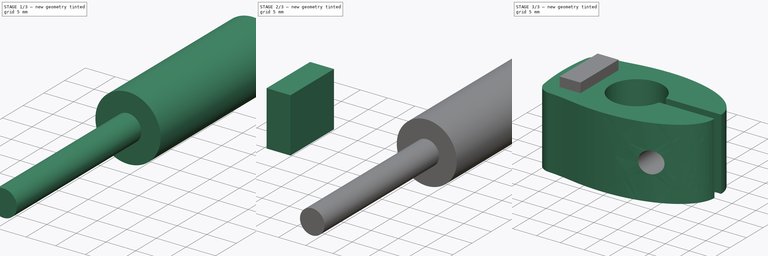
[diagram: build sequence overview — one tinted view per stage of 3, left to right]
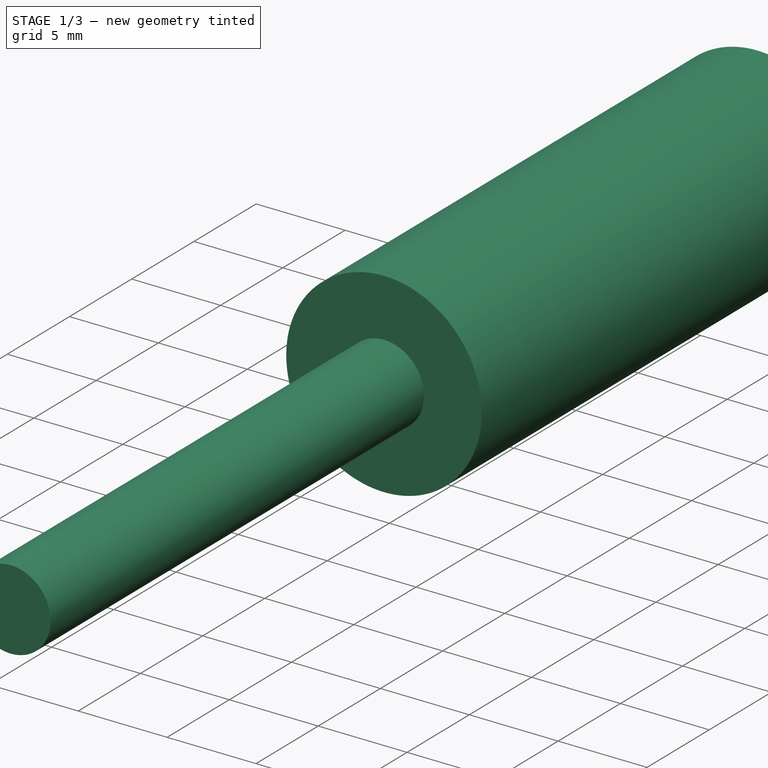
[diagram: stage 1 of 3 — iso view after this stage's code; geometry added in this stage tinted green]
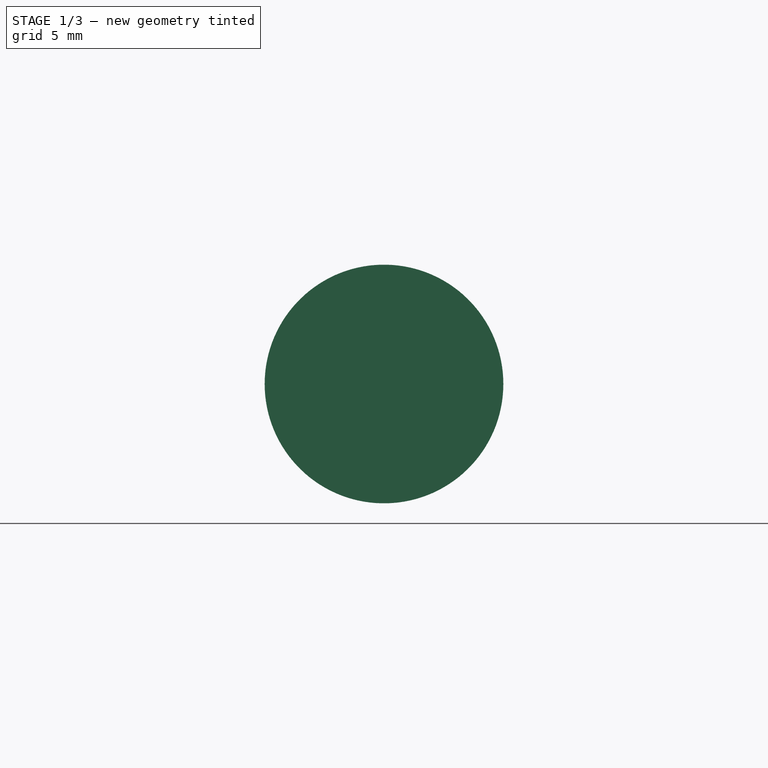
[diagram: stage 1 of 3 — front view after this stage's code; geometry added in this stage tinted green]
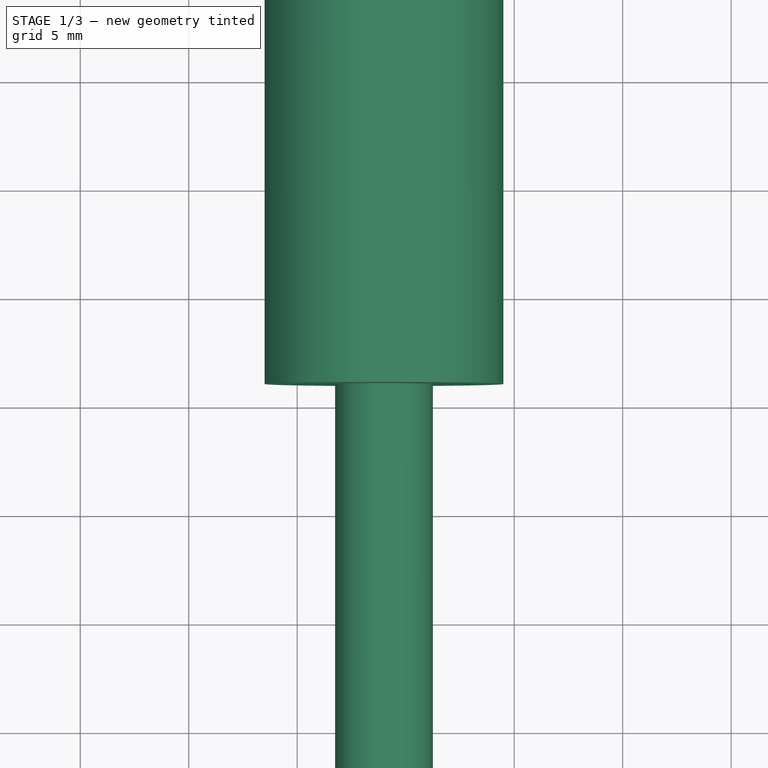
[diagram: stage 1 of 3 — top view after this stage's code; geometry added in this stage tinted green]
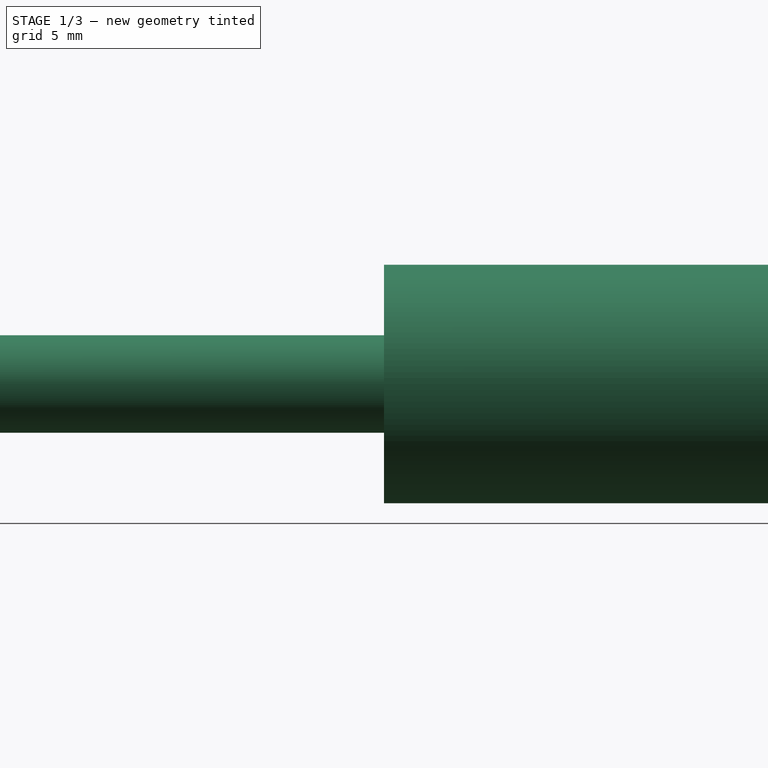
[diagram: stage 1 of 3 — right view after this stage's code; geometry added in this stage tinted green]
FCSTD DOCUMENT  (FreeCAD 0.22R37100 (Git))
Label: 3018_pro_additional
License: All rights reserved
LicenseURL: http://en.wikipedia.org/wiki/All_rights_reserved
objects: Sketcher::SketchObject×4, Part::FeaturePython×3, PartDesign::Body×3, Part::Mirroring×1, PartDesign::SubShapeBinder×1, PartDesign::Pad×1, Part::Extrusion×1, Part::Compound×1, PartDesign::Revolution×1, Part::MultiFuse×1, PartDesign::Boolean×1
note: 20 computed .brp shape members not serialized (recipe doc carries the construction recipe); baked Part::Feature solids carry a one-line shape summary decoded from their .brp

FEATURE [Sketcher::SketchObject] Sketch003
  AttachmentSupport = -> [XZ_Plane002]
  FullyConstrained = true
  MapMode = 5
  Placement = pos=(0,0,0) rot=(1,0,0;1.5708rad)
  sketch-geometry (6):
    g0: LineSegment StartX=0 StartY=30 StartZ=0 EndX=5.5 EndY=30 EndZ=0
    g1: LineSegment StartX=5.5 StartY=30 StartZ=0 EndX=5.5 EndY=0 EndZ=0
    g2: LineSegment StartX=5.5 StartY=0 StartZ=0 EndX=2.25 EndY=0 EndZ=0
    g3: LineSegment StartX=2.25 StartY=0 StartZ=0 EndX=2.25 EndY=-30 EndZ=0
    g4: LineSegment StartX=2.25 StartY=-30 StartZ=0 EndX=0 EndY=-30 EndZ=0
    g5: LineSegment StartX=0 StartY=-30 StartZ=0 EndX=0 EndY=30 EndZ=0
  constraints (18):
    c: PointOnObject(g0,g-2)
    c: Horizontal(g0)
    c: Coincident(g0,g1)
    c: PointOnObject(g1,g-1)
    c: Vertical(g1)
    c: Coincident(g1,g2)
    c: Horizontal(g2)
    c: Coincident(g2,g3)
    c: Vertical(g3)
    c: Coincident(g3,g4)
    c: PointOnObject(g4,g-2)
    c: Horizontal(g4)
    c: Coincident(g4,g5)
    c: Coincident(g5,g0)
    c: DistanceX(g2) = 2.25
    c: DistanceX(g1) = 5.5
    c: DistanceY(g1,g1) = 30
    c: Equal(g3,g1)
FEATURE [PartDesign::Revolution] Revolution
  Angle = 360
  Angle2 = 60
  Axis = (0,2e-16,1)
  Base = (0,0,0)
  Placement = pos=(0,0,0) rot=(1,0,0;1.5708rad)
  Profile = -> Sketch003
  ReferenceAxis = -> Sketch003 [V_Axis]
  Reversed = true
  Suppressed = false
  Type = 0
FEATURE [PartDesign::Body] Body002
  Group = -> [Sketch003,Revolution]
  Origin = -> Origin002
  Tip = -> Revolution
FEATURE [Part::FeaturePython] Placment  # WARN: FeaturePython — macro-defined, semantics opaque (R4)
  AttacherType = Attacher::AttachEngine3D
  ExposePlacement = true
  MarkerShape = 1
  MarkerSize = 5
  NumElements = 1
  Placement = pos=(9,6,7.5) rot=(1,0,0;-1.5708rad)
  Type = lattice2AttachablePlacement.AttachablePlacement
  isLattice = 1
FEATURE [Part::FeaturePython] Populate  label="Populate Placment with Body002"  # WARN: FeaturePython — macro-defined, semantics opaque (R4)
  Copying = 0
  ExposePlacement = false
  MarkerShape = 1
  MarkerSize = 0
  NumElements = 0
  Object = -> Body002
  OutputCompounding = 2
  PlacementsTo = -> Placment
  Referencing = 0
  Type = lattice2PopulateCopies.LatticePopulateCopies
  isLattice = 0
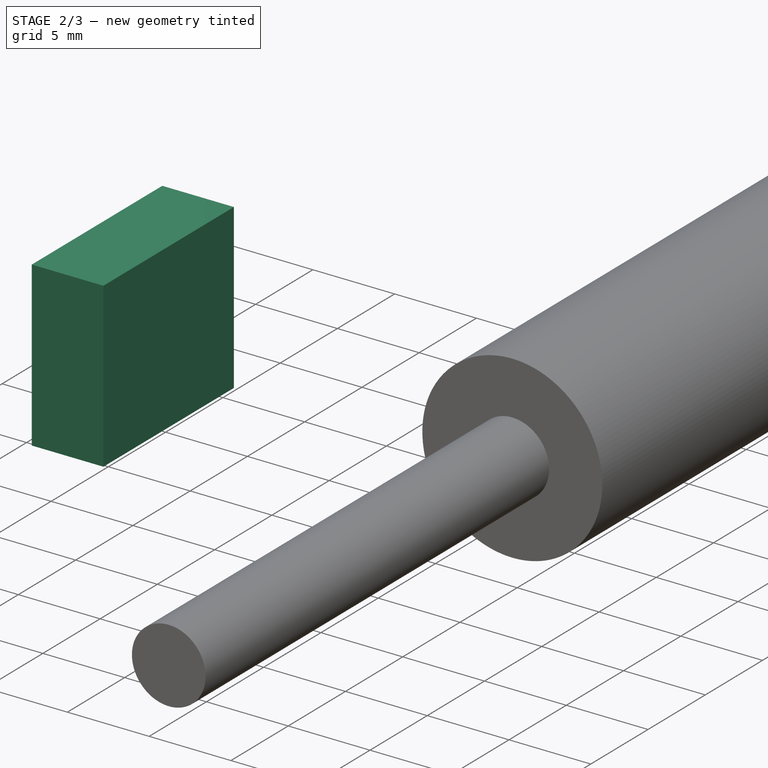
[diagram: stage 2 of 3 — iso view after this stage's code; geometry added in this stage tinted green]
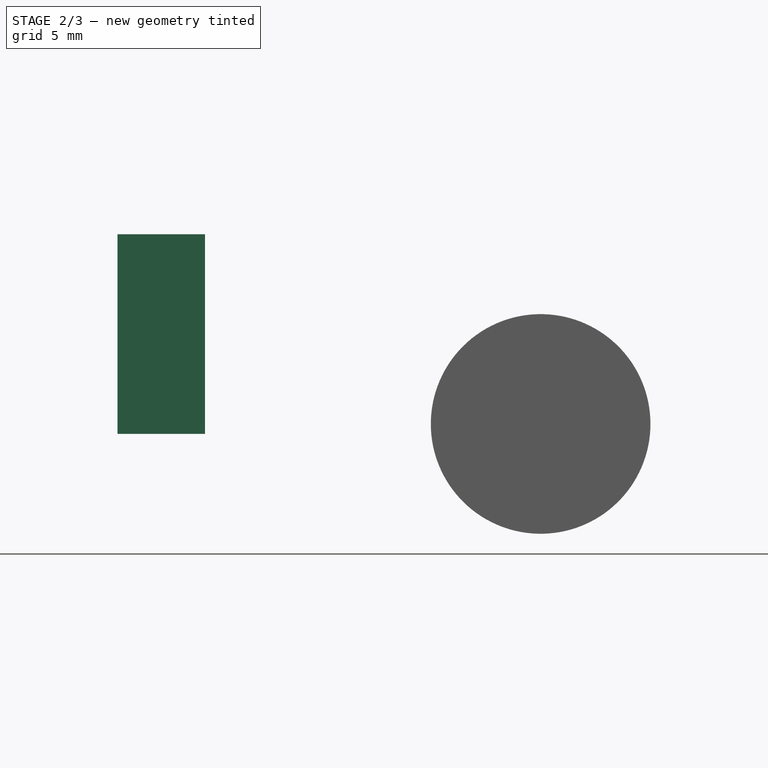
[diagram: stage 2 of 3 — front view after this stage's code; geometry added in this stage tinted green]
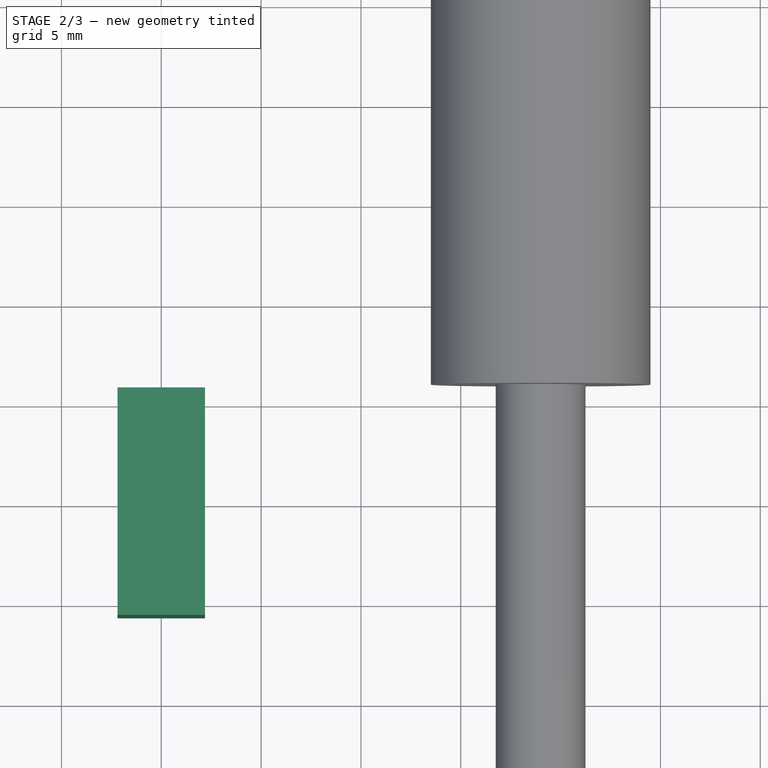
[diagram: stage 2 of 3 — top view after this stage's code; geometry added in this stage tinted green]
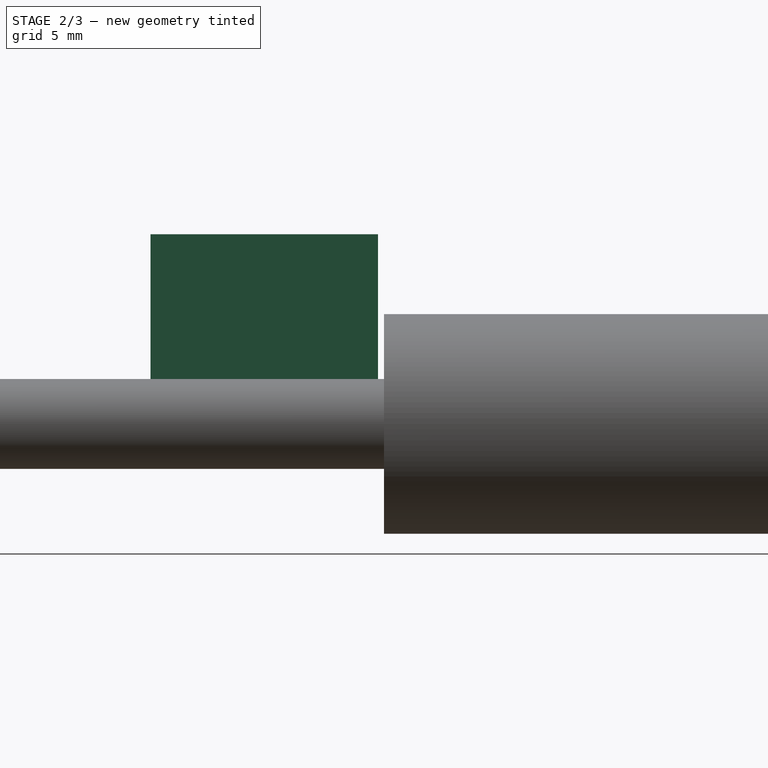
[diagram: stage 2 of 3 — right view after this stage's code; geometry added in this stage tinted green]
FEATURE [Part::Extrusion] Extrude
  Base = -> Sketch001
  Dir = (0,0,1)
  DirMode = 2
  FaceMakerClass = Part::FaceMakerBullseye
  LengthFwd = 10
  LengthRev = 0
  Placement = pos=(0,0,7) rot=(0,0,1;0rad)
  Solid = true
  Symmetric = false
FEATURE [PartDesign::Body] Body001
  Origin = -> Origin001
FEATURE [Part::Compound] Compound
  Links = -> [Extrude]
FEATURE [Part::MultiFuse] Fusion
  Shapes = -> [Extrude,Populate]
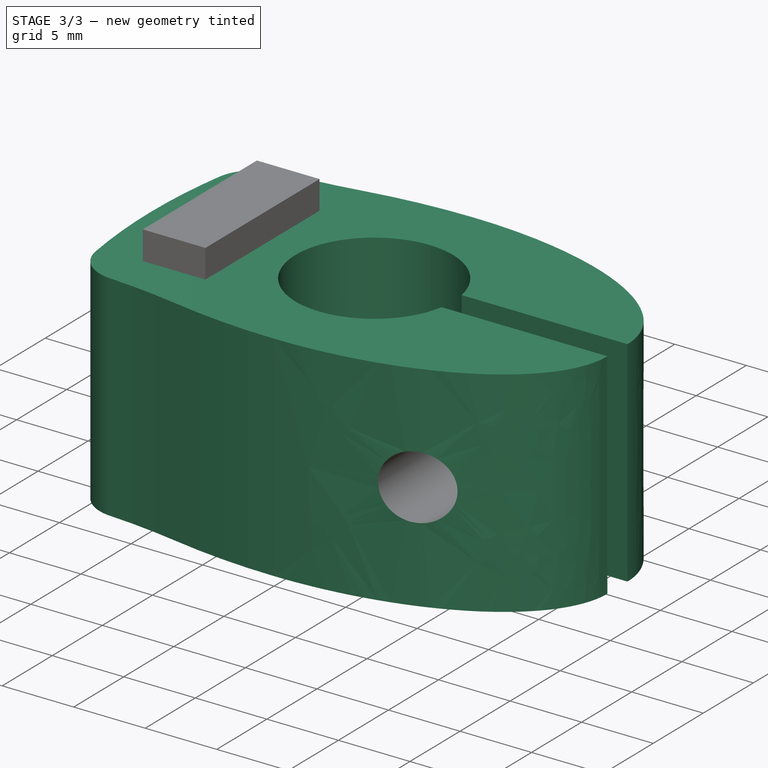
[diagram: stage 3 of 3 — iso view after this stage's code; geometry added in this stage tinted green]
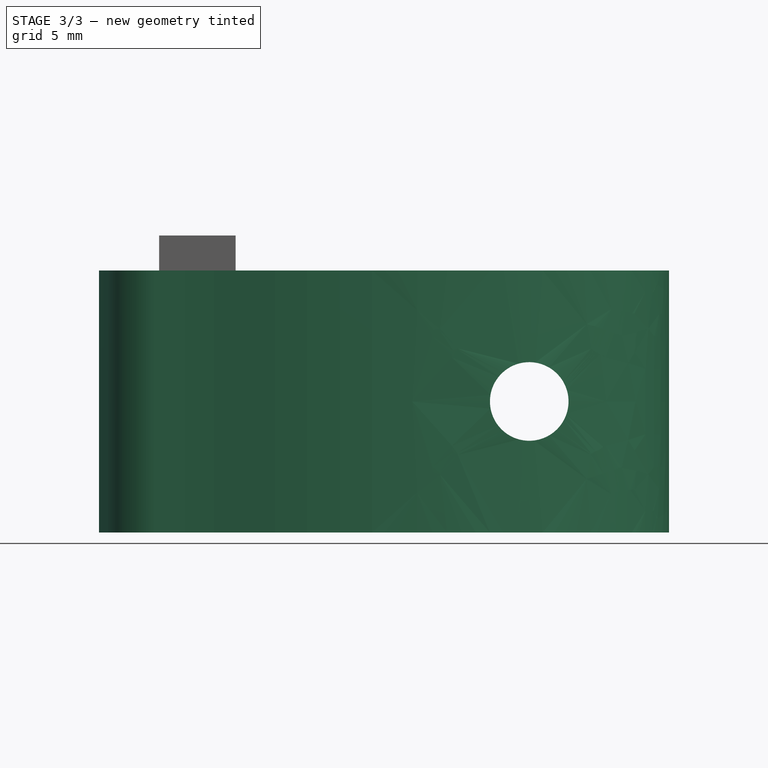
[diagram: stage 3 of 3 — front view after this stage's code; geometry added in this stage tinted green]
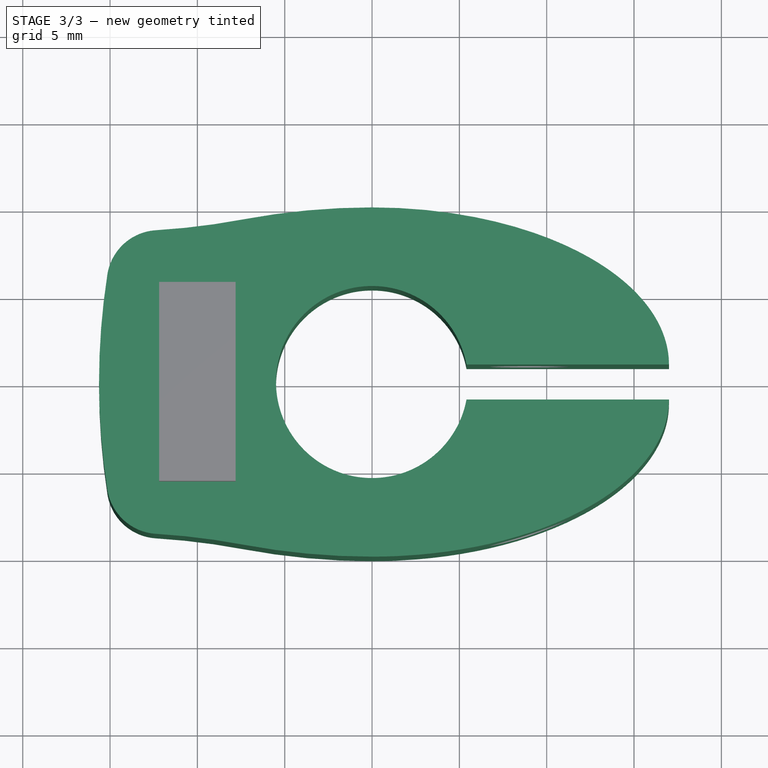
[diagram: stage 3 of 3 — top view after this stage's code; geometry added in this stage tinted green]
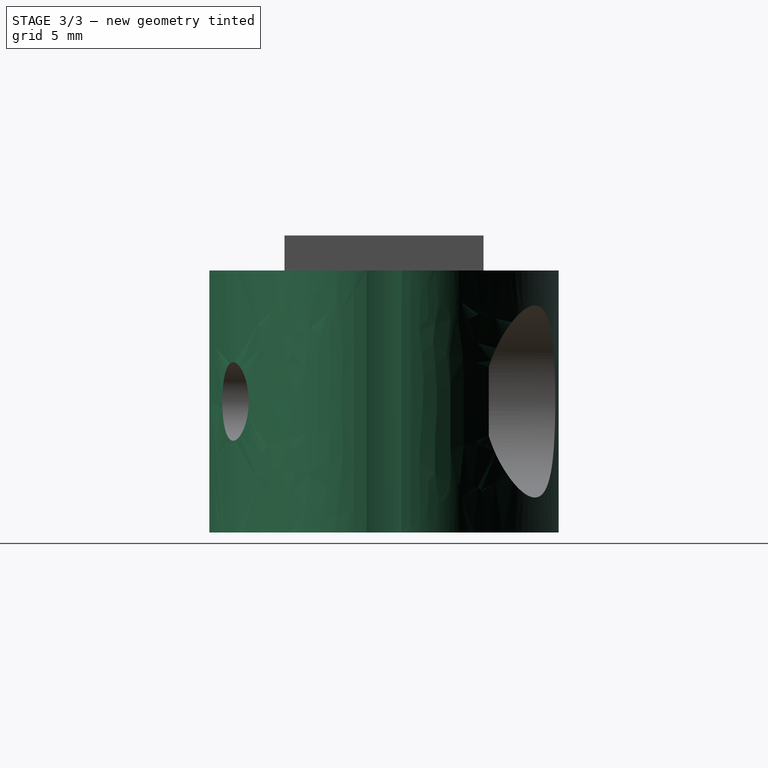
[diagram: stage 3 of 3 — right view after this stage's code; geometry added in this stage tinted green]
FEATURE [Sketcher::SketchObject] Sketch
  FullyConstrained = true
  sketch-geometry (1):
    g0: ArcOfCircle CenterX=0 CenterY=0 CenterZ=0 NormalX=0 NormalY=0 NormalZ=1 AngleXU=0 Radius=5 StartAngle=1.5708 EndAngle=3.14159
  constraints (4):
    c: Coincident(g0,g-1)
    c: PointOnObject(g0,g-2)
    c: PointOnObject(g0,g-1)
    c: Diameter(g0) = 10
FEATURE [Sketcher::SketchObject] Sketch001
  FullyConstrained = false
  Placement = pos=(-10,0,0) rot=(0,0,1;0rad)
  sketch-geometry (5):
    g0: LineSegment StartX=-2.18983 StartY=-5.69774 StartZ=0 EndX=2.18983 EndY=-5.69774 EndZ=0
    g1: LineSegment StartX=2.18983 StartY=-5.69774 StartZ=0 EndX=2.18983 EndY=5.69774 EndZ=0
    g2: LineSegment StartX=2.18983 StartY=5.69774 StartZ=0 EndX=-2.18983 EndY=5.69774 EndZ=0
    g3: LineSegment StartX=-2.18983 StartY=5.69774 StartZ=0 EndX=-2.18983 EndY=-5.69774 EndZ=0
    g4: GeomPoint X=0 Y=0 Z=0
  constraints (10):
    c: Coincident(g0,g1)
    c: Coincident(g1,g2)
    c: Coincident(g2,g3)
    c: Coincident(g3,g0)
    c: Horizontal(g0)
    c: Horizontal(g2)
    c: Vertical(g1)
    c: Vertical(g3)
    c: Symmetric(g2,g0,g4)
    c: Coincident(g4,g-1)
FEATURE [Sketcher::SketchObject] Sketch002
  ExternalGeometry = -> [Sketch001,Sketch]
  FullyConstrained = true
  sketch-geometry (11):
    g0: ArcOfCircle CenterX=-12.1898 CenterY=5.69774 CenterZ=0 NormalX=0 NormalY=0 NormalZ=1 AngleXU=0 Radius=3 StartAngle=1.63165 EndAngle=2.98698
    g1: ArcOfCircle CenterX=24.3688 CenterY=0 CenterZ=0 NormalX=0 NormalY=0 NormalZ=1 AngleXU=0 Radius=40 StartAngle=2.98698 EndAngle=3.14159
    g2: ArcOfCircle CenterX=-14.805 CenterY=48.6181 CenterZ=0 NormalX=0 NormalY=0 NormalZ=1 AngleXU=0 Radius=40 StartAngle=4.77324 EndAngle=4.89852
    g3: ArcOfCircle CenterX=0 CenterY=-30 CenterZ=0 NormalX=0 NormalY=0 NormalZ=1 AngleXU=0 Radius=40 StartAngle=1.5708 EndAngle=1.75693
    g4: LineSegment StartX=17 StartY=1 StartZ=0 EndX=5.40833 EndY=1 EndZ=0
    g5: ArcOfCircle CenterX=0 CenterY=0 CenterZ=0 NormalX=0 NormalY=0 NormalZ=1 AngleXU=0 Radius=5.5 StartAngle=0.182835 EndAngle=3.14159
    g6: ArcOfEllipse CenterX=7e-16 CenterY=1 CenterZ=0 NormalX=0 NormalY=0 NormalZ=1 MajorRadius=17 MinorRadius=9 AngleXU=0 StartAngle=0 EndAngle=1.5708
    g7: LineSegment StartX=17 StartY=1 StartZ=0 EndX=-17 EndY=1 EndZ=0
    g8: LineSegment StartX=7e-16 StartY=10 StartZ=0 EndX=7e-16 EndY=-8 EndZ=0
    g9: GeomPoint X=14.4222 Y=1 Z=0
    g10: GeomPoint X=-14.4222 Y=1 Z=0
  constraints (24):
    c: Coincident(g0,g-3)
    c: PointOnObject(g1,g-1)
    c: PointOnObject(g1,g-1)
    c: Tangent(g1,g0) = -1.5708
    c: PointOnObject(g3,g-2)
    c: Tangent(g2,g0) = 1.5708
    c: Tangent(g3,g2) = 1.5708
    c: Radius(g0) = 3
    c: Equal(g2,g1)
    c: Equal(g1,g3)
    c: Horizontal(g4)
    c: PointOnObject(g5,g-1)
    c: Coincident(g4,g5)
    c: Distance(g-4,g5) = 0.5
    c: DistanceY(g4) = 1
    c: Radius(g1) = 40
    c: InternalAlignment(g7-g10 -> g6) x4
    c: Tangent(g6,g3) = -1.5708
    c: Perpendicular(g6,g4) = 1.5708
    c: Horizontal(g7)
    c: DistanceX(g4) = 17
    c: PointOnObject(g3,g-2)
    c: DistanceY(g8) = 10
    c: Coincident(g5,g-1)
FEATURE [Part::Mirroring] Part__Mirroring  label="Sketch002 (Mirror #1)"
  Base = (0,0,0)
  Normal = (0,1,0)
  Source = -> Sketch002
FEATURE [Part::FeaturePython] Connect  # WARN: FeaturePython — macro-defined, semantics opaque (R4)
  Objects = -> [Sketch002,Part__Mirroring]
  Tolerance = 0
FEATURE [PartDesign::SubShapeBinder] Binder
  BindCopyOnChange = 0
  BindMode = 0
  ClaimChildren = true
  Context = -> Body [Binder.]
  Fuse = false
  MakeFace = true
  OffsetFill = false
  OffsetIntersection = false
  OffsetJoinType = 0
  OffsetOpenResult = false
  PartialLoad = false
  Relative = true
  Support = -> [Connect]
  _Version = 2
FEATURE [PartDesign::Pad] Pad
  Direction = (0,0,1)
  Length = 15
  Length2 = 10
  Profile = -> Binder
  Suppressed = false
  Type = 0
FEATURE [PartDesign::Boolean] Boolean
  BaseFeature = -> Pad
  Group = -> [Fusion]
  Suppressed = false
  Type = 1
  UsePlacement = true
FEATURE [PartDesign::Body] Body
  Group = -> [Binder,Pad,Boolean]
  Origin = -> Origin
  Tip = -> Boolean
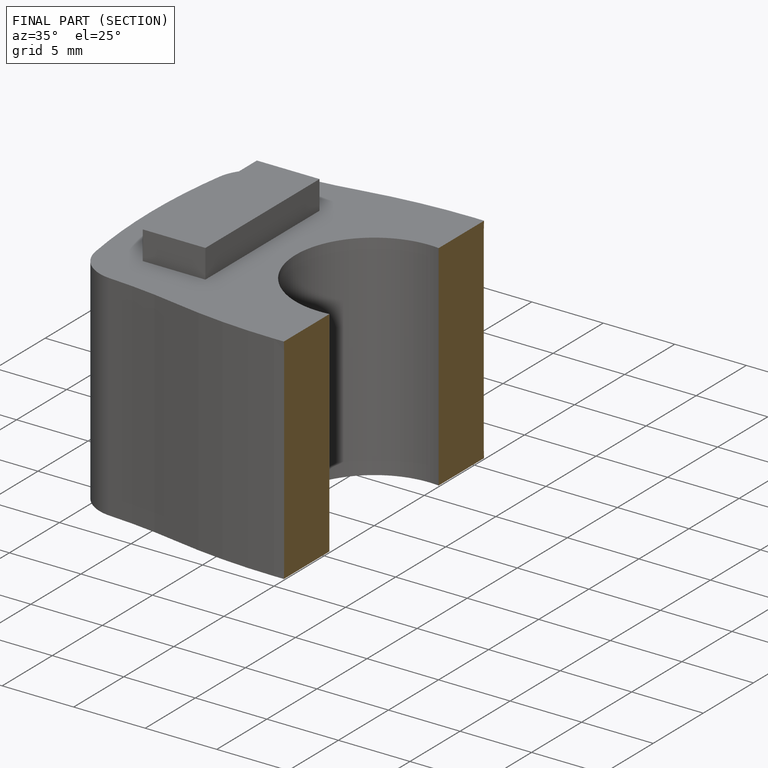
[diagram: finished part — half-section view (interior)]
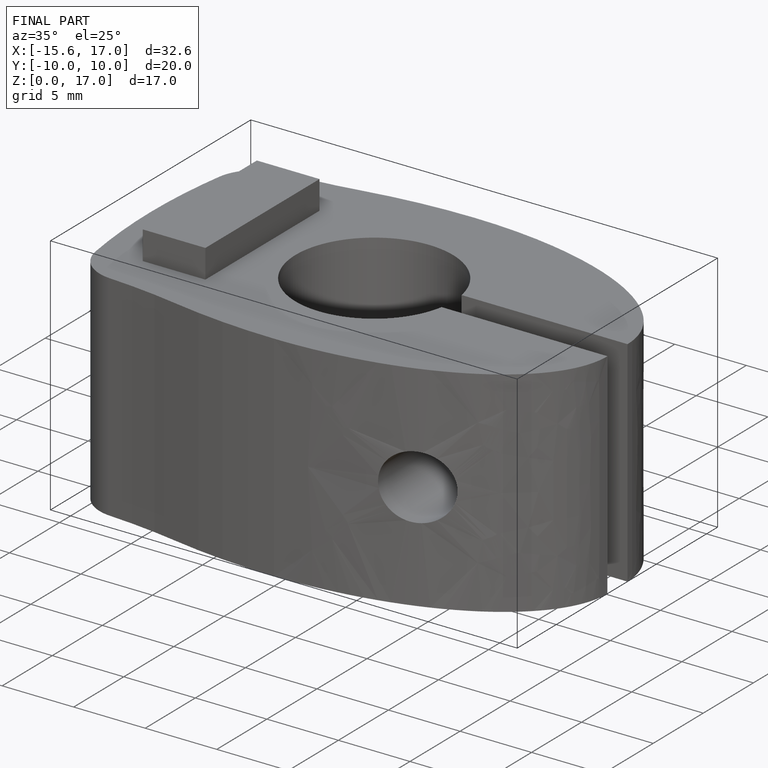
[diagram: finished part — iso view with bounding-box wireframe]
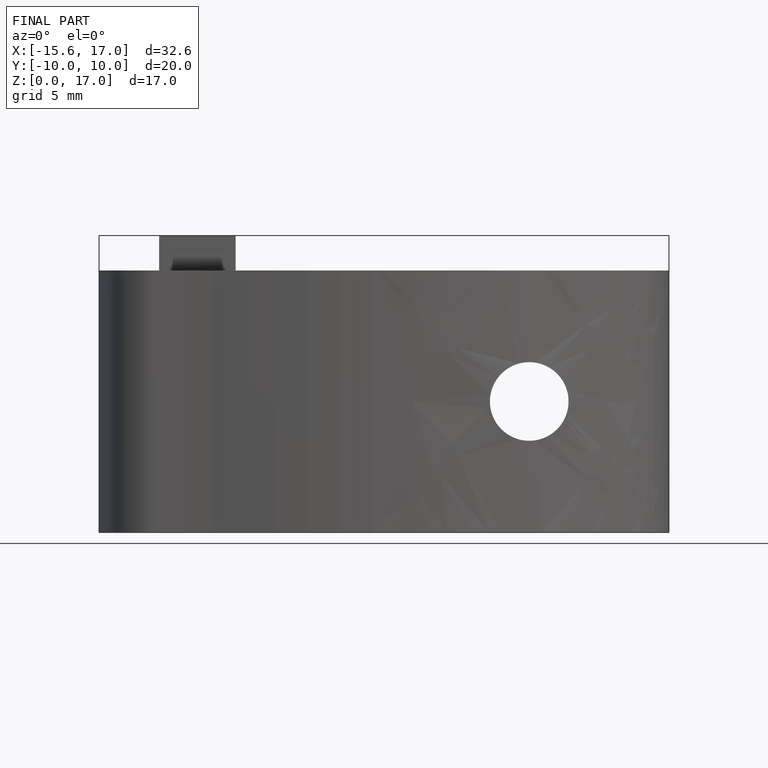
[diagram: finished part — front view with bounding-box wireframe]
